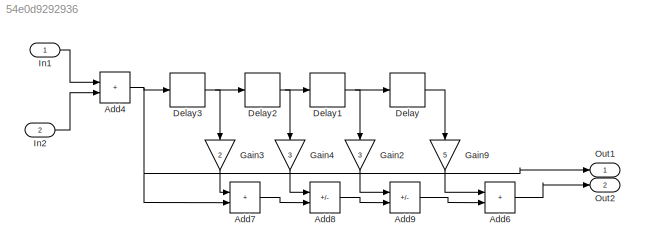
MODEL slx_54e0d9292936
KIND model
CONFIG AbsTol = auto
CONFIG EnableMultiTasking = off
CONFIG FixedStep = auto
CONFIG MaxStep = auto
CONFIG MinStep = auto
CONFIG RelTol = 1e-3
CONFIG SampleTimeConstraint = Unconstrained
CONFIG SolverName = VariableStepAuto
CONFIG StartTime = 0.0
CONFIG StopTime = 10.0
BLOCK [Sum] Add4
  IconShape = rectangular
  Ports = [2, 1]
BLOCK [Sum] Add6
  IconShape = rectangular
  Ports = [2, 1]
BLOCK [Sum] Add7
  IconShape = rectangular
  Ports = [2, 1]
BLOCK [Sum] Add8
  IconShape = rectangular
  Inputs = -+
  Ports = [2, 1]
BLOCK [Sum] Add9
  IconShape = rectangular
  Inputs = -+
  Ports = [2, 1]
BLOCK [Delay] Delay
  DelayLength = 1
  InputPortMap = u0
  Ports = [1, 1]
BLOCK [Delay] Delay1
  DelayLength = 1
  InputPortMap = u0
  Ports = [1, 1]
BLOCK [Delay] Delay2
  DelayLength = 1
  InputPortMap = u0
  Ports = [1, 1]
BLOCK [Delay] Delay3
  DelayLength = 1
  InputPortMap = u0
  Ports = [1, 1]
BLOCK [Gain] Gain2
  Gain = 3
  NameLocation = left
BLOCK [Gain] Gain3
  Gain = 2
  NameLocation = left
BLOCK [Gain] Gain4
  Gain = 3
  NameLocation = left
BLOCK [Gain] Gain9
  Gain = 5
  NameLocation = left
BLOCK [Inport] In1
  OutDataTypeStr = double
  PortDimensions = 1
  SampleTime = 0
  SamplingMode = Sample based
  SignalType = real
BLOCK [Inport] In2
  OutDataTypeStr = double
  Port = 2
  PortDimensions = 1
  SampleTime = 0
  SamplingMode = Sample based
  SignalType = real
BLOCK [Outport] Out1
  OutDataTypeStr = double
  PortDimensions = 1
  SampleTime = 0
  SamplingMode = Sample based
  SignalType = real
BLOCK [Outport] Out2
  OutDataTypeStr = double
  Port = 2
  PortDimensions = 1
  SampleTime = 0
  SamplingMode = Sample based
  SignalType = real
NET Add4:1 -> Add7:2, Delay3:1, Out1:1
LINE Add6:1 -> Out2:1
LINE Add7:1 -> Add8:2
LINE Add8:1 -> Add9:2
LINE Add9:1 -> Add6:2
NET Delay1:1 -> Delay:1, Gain2:1
NET Delay2:1 -> Delay1:1, Gain4:1
NET Delay3:1 -> Delay2:1, Gain3:1
LINE Delay:1 -> Gain9:1
LINE Gain2:1 -> Add9:1
LINE Gain3:1 -> Add7:1
LINE Gain4:1 -> Add8:1
LINE Gain9:1 -> Add6:1
LINE In1:1 -> Add4:1
LINE In2:1 -> Add4:2
note: NET lines group one-source signal fan-out (src -> all destinations, sorted); 1:1 wires keep LINE
